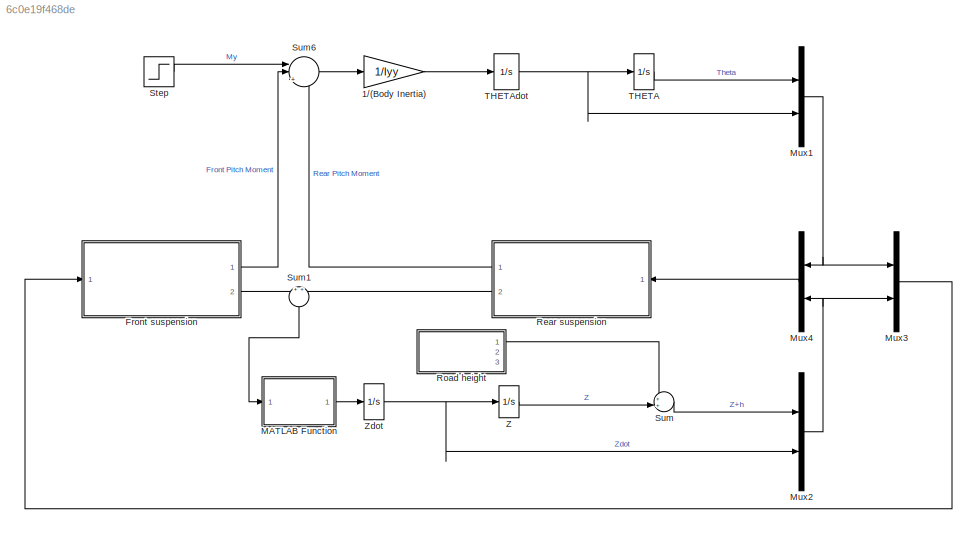
MODEL slx_6c0e19f468de
KIND model
CONFIG AbsTol = 1e-6
CONFIG EnableMultiTasking = off
CONFIG FixedStep = auto
CONFIG MaxStep = 0.2
CONFIG MinStep = auto
CONFIG PreLoadFcn = Lf=0.9;\nLr=1.2;\nMb=1200;\nIyy=2100;\nKf=28000;\nKr=21000;\nCf=2500;\nCr=2000;
CONFIG RelTol = 1e-3
CONFIG SampleTimeConstraint = Unconstrained
CONFIG SolverName = ode45
CONFIG StartTime = 0.0
CONFIG StopTime = 150
BLOCK [Gain] 1//(Body Inertia)
  Gain = 1/Iyy
  OutDataTypeStr = Inherit: Same as input
  ParamDataTypeStr = Inherit: Same as input
  SaturateOnIntegerOverflow = on
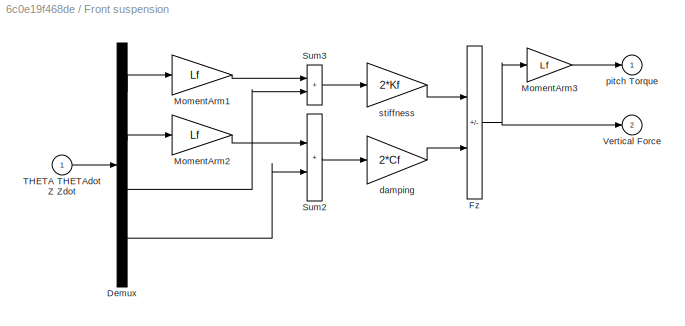
BLOCK [SubSystem] Front suspension
  Ports = [1, 2]
  RequestExecContextInheritance = off
BLOCK [Demux] Front suspension/Demux
  DisplayOption = none
  Ports = [1, 4]
BLOCK [Sum] Front suspension/Fz
  IconShape = rectangular
  InputSameDT = on
  Inputs = --
  OutDataTypeStr = Inherit: Same as first input
  Ports = [2, 1]
  SaturateOnIntegerOverflow = on
BLOCK [Gain] Front suspension/MomentArm1
  Gain = Lf
  OutDataTypeStr = Inherit: Same as input
  ParamDataTypeStr = Inherit: Same as input
  SaturateOnIntegerOverflow = on
BLOCK [Gain] Front suspension/MomentArm2
  Gain = Lf
  OutDataTypeStr = Inherit: Same as input
  ParamDataTypeStr = Inherit: Same as input
  SaturateOnIntegerOverflow = on
BLOCK [Gain] Front suspension/MomentArm3
  Gain = Lf
  OutDataTypeStr = Inherit: Same as input
  ParamDataTypeStr = Inherit: Same as input
  SaturateOnIntegerOverflow = on
BLOCK [Sum] Front suspension/Sum2
  IconShape = rectangular
  InputSameDT = on
  OutDataTypeStr = Inherit: Same as first input
  Ports = [2, 1]
  SaturateOnIntegerOverflow = on
BLOCK [Sum] Front suspension/Sum3
  IconShape = rectangular
  InputSameDT = on
  OutDataTypeStr = Inherit: Same as first input
  Ports = [2, 1]
  SaturateOnIntegerOverflow = on
BLOCK [Inport] Front suspension/THETA THETAdot Z Zdot
BLOCK [Outport] Front suspension/Vertical Force
  Port = 2
  VectorParamsAs1DForOutWhenUnconnected = off
BLOCK [Gain] Front suspension/damping
  Gain = 2*Cf
  OutDataTypeStr = Inherit: Same as input
  ParamDataTypeStr = Inherit: Same as input
  SaturateOnIntegerOverflow = on
BLOCK [Outport] Front suspension/pitch Torque
  VectorParamsAs1DForOutWhenUnconnected = off
BLOCK [Gain] Front suspension/stiffness
  Gain = 2*Kf
  OutDataTypeStr = Inherit: Same as input
  ParamDataTypeStr = Inherit: Same as input
  SaturateOnIntegerOverflow = on
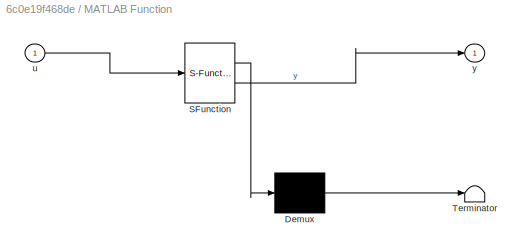
BLOCK [SubSystem] MATLAB Function
  ErrorFcn = Stateflow.Translate.translate
  PermitHierarchicalResolution = ExplicitOnly
  Ports = [1, 1]
  RequestExecContextInheritance = off
  SFBlockType = MATLAB Function
  TreatAsAtomicUnit = on
BLOCK [Demux] MATLAB Function/ Demux 
  Outputs = 1
  Ports = [1, 1]
BLOCK [S-Function] MATLAB Function/ SFunction 
  EnableBusSupport = on
  FunctionName = sf_sfun
  PortCounts = [1 2]
  Ports = [1, 2]
  SFcnIsStateOwnerBlock = off
  SFunctionDeploymentMode = off
  Tag = Stateflow S-Function 2
BLOCK [Terminator] MATLAB Function/ Terminator 
BLOCK [Inport] MATLAB Function/u
BLOCK [Outport] MATLAB Function/y
BLOCK [Mux] Mux1
  DisplayOption = signals
  Inputs = 2
  Ports = [2, 1]
BLOCK [Mux] Mux2
  DisplayOption = signals
  Inputs = 2
  Ports = [2, 1]
BLOCK [Mux] Mux3
  DisplayOption = signals
  Inputs = 2
  Ports = [2, 1]
BLOCK [Mux] Mux4
  DisplayOption = signals
  Inputs = 2
  Ports = [2, 1]
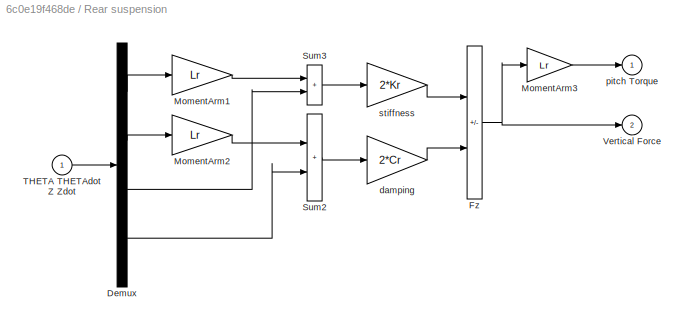
BLOCK [SubSystem] Rear suspension
  Ports = [1, 2]
  RequestExecContextInheritance = off
BLOCK [Demux] Rear suspension/Demux
  DisplayOption = none
  Ports = [1, 4]
BLOCK [Sum] Rear suspension/Fz
  IconShape = rectangular
  InputSameDT = on
  Inputs = --
  OutDataTypeStr = Inherit: Same as first input
  Ports = [2, 1]
  SaturateOnIntegerOverflow = on
BLOCK [Gain] Rear suspension/MomentArm1
  Gain = Lr
  OutDataTypeStr = Inherit: Same as input
  ParamDataTypeStr = Inherit: Same as input
  SaturateOnIntegerOverflow = on
BLOCK [Gain] Rear suspension/MomentArm2
  Gain = Lr
  OutDataTypeStr = Inherit: Same as input
  ParamDataTypeStr = Inherit: Same as input
  SaturateOnIntegerOverflow = on
BLOCK [Gain] Rear suspension/MomentArm3
  Gain = Lr
  OutDataTypeStr = Inherit: Same as input
  ParamDataTypeStr = Inherit: Same as input
  SaturateOnIntegerOverflow = on
BLOCK [Sum] Rear suspension/Sum2
  IconShape = rectangular
  InputSameDT = on
  OutDataTypeStr = Inherit: Same as first input
  Ports = [2, 1]
  SaturateOnIntegerOverflow = on
BLOCK [Sum] Rear suspension/Sum3
  IconShape = rectangular
  InputSameDT = on
  OutDataTypeStr = Inherit: Same as first input
  Ports = [2, 1]
  SaturateOnIntegerOverflow = on
BLOCK [Inport] Rear suspension/THETA THETAdot Z Zdot
BLOCK [Outport] Rear suspension/Vertical Force
  Port = 2
  VectorParamsAs1DForOutWhenUnconnected = off
BLOCK [Gain] Rear suspension/damping
  Gain = 2*Cr
  OutDataTypeStr = Inherit: Same as input
  ParamDataTypeStr = Inherit: Same as input
  SaturateOnIntegerOverflow = on
BLOCK [Outport] Rear suspension/pitch Torque
  VectorParamsAs1DForOutWhenUnconnected = off
BLOCK [Gain] Rear suspension/stiffness
  Gain = 2*Kr
  OutDataTypeStr = Inherit: Same as input
  ParamDataTypeStr = Inherit: Same as input
  SaturateOnIntegerOverflow = on
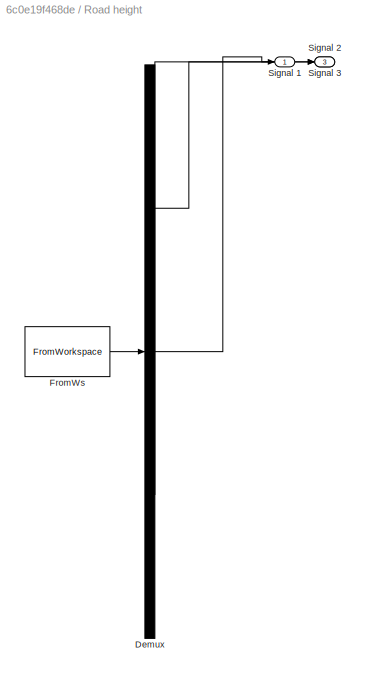
BLOCK [SubSystem] Road height
  ClipboardFcn = sigbuilder_block('clipboard');
  CloseFcn = sigbuilder_block('close');
  ContinueFcn = sigbuilder_block('continue');
  CopyFcn = sigbuilder_block('copy');
  DeleteFcn = sigbuilder_block('delete');
  LoadFcn = sigbuilder_block('load');
  MaskHideContents = on
  ModelCloseFcn = sigbuilder_block('modelClose');
  NameChangeFcn = sigbuilder_block('namechange');
  OpenFcn = sigbuilder_block('open',[437.6 199.2 550.4 400 ]);
  PauseFcn = sigbuilder_block('pause');
  Ports = [0, 3]
  PreSaveFcn = sigbuilder_block('preSave');
  RequestExecContextInheritance = off
  StartFcn = sigbuilder_block('start');
  StopFcn = sigbuilder_block('stop');
  Tag = STV Subsys
BLOCK [Demux] Road height/Demux
  DisplayOption = none
  Outputs = 3
  Ports = [1, 3]
  Tag = STV Demux
BLOCK [FromWorkspace] Road height/FromWs
  Tag = STV FromWs
  VariableName = tuvar
BLOCK [Outport] Road height/Signal 1
  Tag = STV Outport
BLOCK [Outport] Road height/Signal 2
  Port = 3
  Tag = STV Outport
BLOCK [Outport] Road height/Signal 3
  Port = 2
  Tag = STV Outport
BLOCK [Step] Step
  After = 100
  SampleTime = 0
  Time = 3
BLOCK [Sum] Sum
  Inputs = ++|
  Ports = [2, 1]
BLOCK [Sum] Sum1
  NameLocation = left
  Ports = [2, 1]
BLOCK [Sum] Sum6
  InputSameDT = on
  Inputs = ||+++
  OutDataTypeStr = Inherit: Same as first input
  Ports = [3, 1]
  SaturateOnIntegerOverflow = on
BLOCK [Integrator] THETA
  InitialCondition = -8.7e-20
  Ports = [1, 1]
BLOCK [Integrator] THETAdot
  InitialCondition = 8.04e-28
  Ports = [1, 1]
BLOCK [Integrator] Z
  InitialCondition = -0.12
  Ports = [1, 1]
BLOCK [Integrator] Zdot
  Ports = [1, 1]
LINE 1//(Body Inertia):1 -> THETAdot:1
LINE Front suspension/Demux:1 -> Front suspension/MomentArm1:1
LINE Front suspension/Demux:2 -> Front suspension/MomentArm2:1
LINE Front suspension/Demux:3 -> Front suspension/Sum3:2
LINE Front suspension/Demux:4 -> Front suspension/Sum2:2
NET Front suspension/Fz:1 -> Front suspension/MomentArm3:1, Front suspension/Vertical Force:1
LINE Front suspension/MomentArm1:1 -> Front suspension/Sum3:1
LINE Front suspension/MomentArm2:1 -> Front suspension/Sum2:1
LINE Front suspension/MomentArm3:1 -> Front suspension/pitch Torque:1
LINE Front suspension/Sum2:1 -> Front suspension/damping:1
LINE Front suspension/Sum3:1 -> Front suspension/stiffness:1
LINE Front suspension/THETA THETAdot Z Zdot:1 -> Front suspension/Demux:1
LINE Front suspension/damping:1 -> Front suspension/Fz:2
LINE Front suspension/stiffness:1 -> Front suspension/Fz:1
LINE Front suspension:1 -> Sum6:2
LINE Front suspension:2 -> Sum1:1
LINE MATLAB Function:1 -> Zdot:1
NET Mux1:1 -> Mux3:1, Mux4:1
NET Mux2:1 -> Mux3:2, Mux4:2
LINE Mux3:1 -> Front suspension:1
LINE Mux4:1 -> Rear suspension:1
LINE Rear suspension/Demux:1 -> Rear suspension/MomentArm1:1
LINE Rear suspension/Demux:2 -> Rear suspension/MomentArm2:1
LINE Rear suspension/Demux:3 -> Rear suspension/Sum3:2
LINE Rear suspension/Demux:4 -> Rear suspension/Sum2:2
NET Rear suspension/Fz:1 -> Rear suspension/MomentArm3:1, Rear suspension/Vertical Force:1
LINE Rear suspension/MomentArm1:1 -> Rear suspension/Sum3:1
LINE Rear suspension/MomentArm2:1 -> Rear suspension/Sum2:1
LINE Rear suspension/MomentArm3:1 -> Rear suspension/pitch Torque:1
LINE Rear suspension/Sum2:1 -> Rear suspension/damping:1
LINE Rear suspension/Sum3:1 -> Rear suspension/stiffness:1
LINE Rear suspension/THETA THETAdot Z Zdot:1 -> Rear suspension/Demux:1
LINE Rear suspension/damping:1 -> Rear suspension/Fz:2
LINE Rear suspension/stiffness:1 -> Rear suspension/Fz:1
LINE Rear suspension:1 -> Sum6:3
LINE Rear suspension:2 -> Sum1:2
LINE Road height:1 -> Sum:1
LINE Step:1 -> Sum6:1
LINE Sum1:1 -> MATLAB Function:1
LINE Sum6:1 -> 1//(Body Inertia):1
LINE Sum:1 -> Mux2:1
LINE THETA:1 -> Mux1:1
NET THETAdot:1 -> Mux1:2, THETA:1
LINE Z:1 -> Sum:2
NET Zdot:1 -> Mux2:2, Z:1
note: NET lines group one-source signal fan-out (src -> all destinations, sorted); 1:1 wires keep LINE
CHART MATLAB Function states=1 transitions=1
  STATE_LABEL 'eML_blk_kernel()'
  STATE_LABEL 'SCRIPT:\nfunction y = fcn(u)\n\ny = ((u*(1/1200))-9.81);\n'
CHART  states=0 transitions=0
